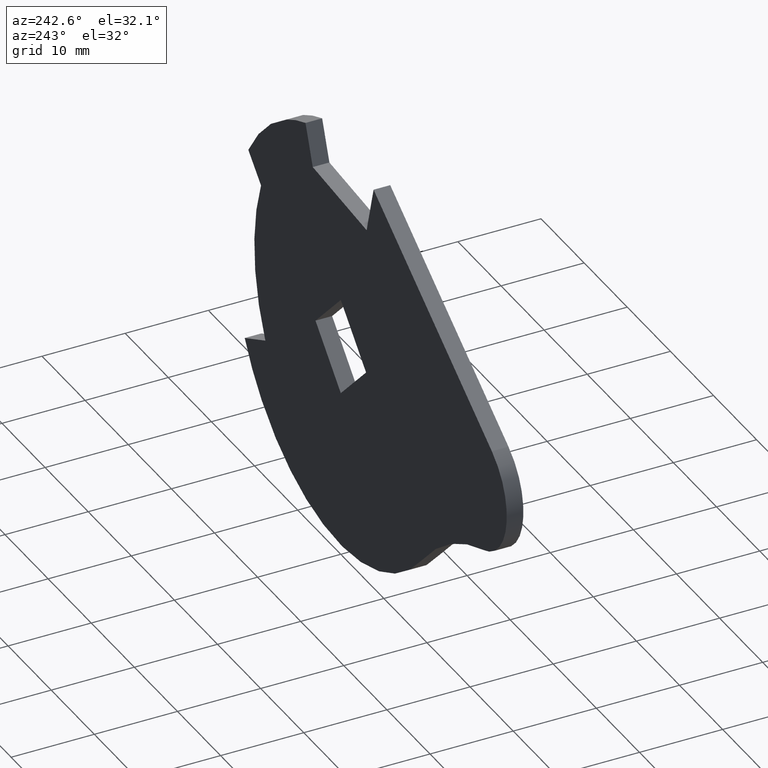
[diagram: clean part render]
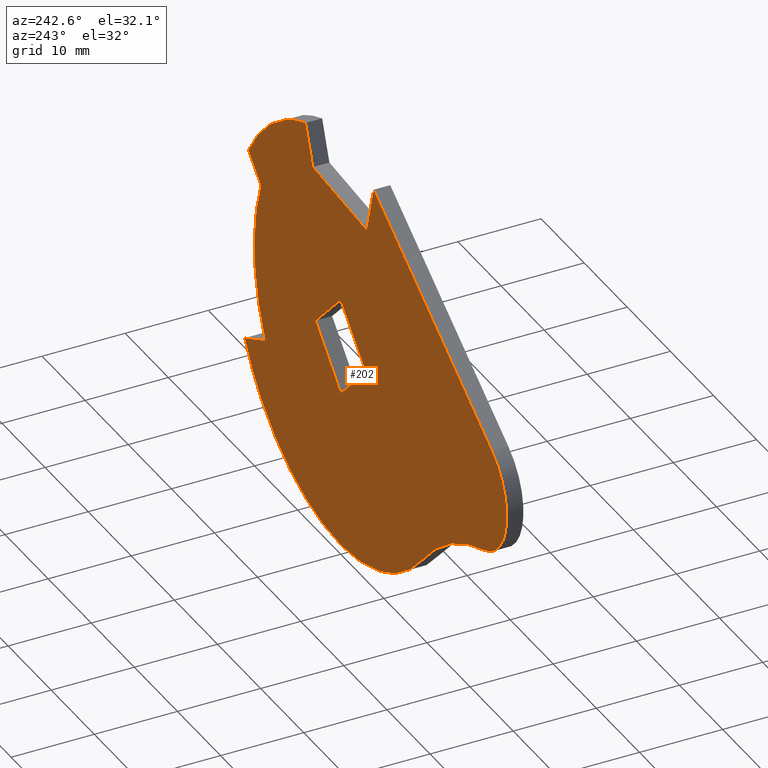
[diagram: same view with one face highlighted and labeled with its STEP entity id]
A machine part, auxiliary view. The second image highlights one B-rep face of the part: STEP entity #202.
In plain terms, the highlighted face is a freeform B-spline surface patch.
Its self-contained STEP definition (entity closure, byte-faithful):
#44=CARTESIAN_POINT('',(-41.535127349591320,0.0,26.447485419626780));
#45=CARTESIAN_POINT('',(25.319943420083320,0.0,26.447485419626780));
#46=CARTESIAN_POINT('',(-41.535127349591320,0.0,-27.446195734419138));
#47=CARTESIAN_POINT('',(25.319943420083320,0.0,-27.446195734419138));
#48=B_SPLINE_SURFACE_WITH_KNOTS('',1,1,((#44,#46),(#45,#47)),.UNSPECIFIED.,.F.,.F.,.U.,(2,2),(2,2),(0.0,66.855070769674640),(0.0,53.893681154045922),.UNSPECIFIED.);
#49=CARTESIAN_POINT('',(-18.912305335812551,0.0,-16.349430156952501));
#50=VERTEX_POINT('',#49);
#51=CARTESIAN_POINT('',(-33.121543283682698,0.0,-7.193419501498741));
#52=VERTEX_POINT('',#51);
#53=CARTESIAN_POINT('',(-18.912305335812551,0.0,-16.349430156952501));
#54=CARTESIAN_POINT('',(-24.672926693730464,0.0,-9.685671257501392));
#55=CARTESIAN_POINT('',(-33.121543283682698,0.0,-7.193419501498741));
#63=(BOUNDED_CURVE()B_SPLINE_CURVE(2,(#53,#54,#55),.UNSPECIFIED.,.F.,.U.)CURVE()GEOMETRIC_REPRESENTATION_ITEM()QUASI_UNIFORM_CURVE()RATIONAL_B_SPLINE_CURVE((1.0,0.959505779183390,1.0))REPRESENTATION_ITEM(''));
#64=EDGE_CURVE('',#50,#52,#63,.T.);
#65=ORIENTED_EDGE('',*,*,#64,.T.);
#66=CARTESIAN_POINT('',(-35.029268839974250,0.0,6.325740479597029));
#67=VERTEX_POINT('',#66);
#68=CARTESIAN_POINT('',(-35.029268839974250,0.0,6.325740479597032));
#69=CARTESIAN_POINT('',(-39.100513541276328,0.0,3.732095857407590));
#70=CARTESIAN_POINT('',(-38.426014233238163,0.0,-1.047765702046671));
#71=CARTESIAN_POINT('',(-37.751514925199984,0.0,-5.827627261500933));
#72=CARTESIAN_POINT('',(-33.121543283682698,0.0,-7.193419501498741));
#80=(BOUNDED_CURVE()B_SPLINE_CURVE(2,(#68,#69,#70,#71,#72),.UNSPECIFIED.,.F.,.U.)B_SPLINE_CURVE_WITH_KNOTS((3,2,3),(0.0,0.500000000000000,1.0),.UNSPECIFIED.)CURVE()GEOMETRIC_REPRESENTATION_ITEM()RATIONAL_B_SPLINE_CURVE((1.0,0.840886149082069,1.0,0.840886149082069,1.0))REPRESENTATION_ITEM(''));
#81=EDGE_CURVE('',#67,#52,#80,.T.);
#82=ORIENTED_EDGE('',*,*,#81,.F.);
#83=CARTESIAN_POINT('',(-7.607000000000000,0.0,24.0));
#84=VERTEX_POINT('',#83);
#85=CARTESIAN_POINT('',(-35.029268839974250,0.0,6.325740479597029));
#86=CARTESIAN_POINT('',(-7.607000000000000,0.0,24.0));
#87=QUASI_UNIFORM_CURVE('',1,(#85,#86),.UNSPECIFIED.,.F.,.U.);
#88=EDGE_CURVE('',#67,#84,#87,.T.);
#89=ORIENTED_EDGE('',*,*,#88,.T.);
#90=CARTESIAN_POINT('',(-6.0,0.0,18.0));
#91=VERTEX_POINT('',#90);
#92=CARTESIAN_POINT('',(-7.607000000000000,0.0,24.0));
#93=CARTESIAN_POINT('',(-6.0,0.0,18.0));
#94=QUASI_UNIFORM_CURVE('',1,(#92,#93),.UNSPECIFIED.,.F.,.U.);
#95=EDGE_CURVE('',#84,#91,#94,.T.);
#96=ORIENTED_EDGE('',*,*,#95,.T.);
#97=CARTESIAN_POINT('',(6.500000000000000,0.0,19.0));
#98=VERTEX_POINT('',#97);
#99=CARTESIAN_POINT('',(-6.0,0.0,18.0));
#100=CARTESIAN_POINT('',(6.500000000000000,0.0,19.0));
#101=QUASI_UNIFORM_CURVE('',1,(#99,#100),.UNSPECIFIED.,.F.,.U.);
#102=EDGE_CURVE('',#91,#98,#101,.T.);
#103=ORIENTED_EDGE('',*,*,#102,.T.);
#104=CARTESIAN_POINT('',(8.182980201324261,0.0,23.622845616579198));
#105=VERTEX_POINT('',#104);
#106=CARTESIAN_POINT('',(6.500000000000000,0.0,19.0));
#107=CARTESIAN_POINT('',(8.182980201324261,0.0,23.622845616579198));
#108=QUASI_UNIFORM_CURVE('',1,(#106,#107),.UNSPECIFIED.,.F.,.U.);
#109=EDGE_CURVE('',#98,#105,#108,.T.);
#110=ORIENTED_EDGE('',*,*,#109,.T.);
#111=CARTESIAN_POINT('',(21.447462022705601,0.0,12.845480636574161));
#112=VERTEX_POINT('',#111);
#113=CARTESIAN_POINT('',(21.447462022705590,0.0,12.845480636574150));
#114=CARTESIAN_POINT('',(16.775225539792963,0.0,20.646482199960836));
#115=CARTESIAN_POINT('',(8.182980201324261,0.0,23.622845616579209));
#123=(BOUNDED_CURVE()B_SPLINE_CURVE(2,(#113,#114,#115),.UNSPECIFIED.,.F.,.U.)CURVE()GEOMETRIC_REPRESENTATION_ITEM()QUASI_UNIFORM_CURVE()RATIONAL_B_SPLINE_CURVE((1.0,0.939766338213495,1.0))REPRESENTATION_ITEM(''));
#124=EDGE_CURVE('',#112,#105,#123,.T.);
#125=ORIENTED_EDGE('',*,*,#124,.F.);
#126=CARTESIAN_POINT('',(18.500357144043949,0.0,10.000344786956999));
#127=VERTEX_POINT('',#126);
#128=CARTESIAN_POINT('',(21.447462022705601,0.0,12.845480636574161));
#129=CARTESIAN_POINT('',(18.500357144043949,0.0,10.000344786956999));
#130=QUASI_UNIFORM_CURVE('',1,(#128,#129),.UNSPECIFIED.,.F.,.U.);
#131=EDGE_CURVE('',#112,#127,#130,.T.);
#132=ORIENTED_EDGE('',*,*,#131,.T.);
#133=CARTESIAN_POINT('',(17.500414805350200,0.0,-9.000202269632389));
#134=VERTEX_POINT('',#133);
#135=CARTESIAN_POINT('',(17.500414805350200,0.0,-9.000202269632394));
#136=CARTESIAN_POINT('',(22.241226133301584,0.0,0.276888441157541));
#137=CARTESIAN_POINT('',(18.500357144043939,0.0,10.000344786956990));
#145=(BOUNDED_CURVE()B_SPLINE_CURVE(2,(#135,#136,#137),.UNSPECIFIED.,.F.,.U.)CURVE()GEOMETRIC_REPRESENTATION_ITEM()QUASI_UNIFORM_CURVE()RATIONAL_B_SPLINE_CURVE((1.0,0.913150525690982,1.0))REPRESENTATION_ITEM(''));
#146=EDGE_CURVE('',#134,#127,#145,.T.);
#147=ORIENTED_EDGE('',*,*,#146,.F.);
#148=CARTESIAN_POINT('',(22.283837975185001,0.0,-11.332720992581740));
#149=VERTEX_POINT('',#148);
#150=CARTESIAN_POINT('',(17.500414805350200,0.0,-9.000202269632389));
#151=CARTESIAN_POINT('',(22.283837975185001,0.0,-11.332720992581740));
#152=QUASI_UNIFORM_CURVE('',1,(#150,#151),.UNSPECIFIED.,.F.,.U.);
#153=EDGE_CURVE('',#134,#149,#152,.T.);
#154=ORIENTED_EDGE('',*,*,#153,.T.);
#155=CARTESIAN_POINT('',(-18.912305335812562,0.0,-16.349430156952501));
#156=CARTESIAN_POINT('',(-10.200774324168949,0.0,-26.426735799385476));
#157=CARTESIAN_POINT('',(3.022309094434244,0.0,-24.816479148257720));
#158=CARTESIAN_POINT('',(16.245392513037434,0.0,-23.206222497129971));
#159=CARTESIAN_POINT('',(22.283837975185001,0.0,-11.332720992581750));
#167=(BOUNDED_CURVE()B_SPLINE_CURVE(2,(#155,#156,#157,#158,#159),.UNSPECIFIED.,.F.,.U.)B_SPLINE_CURVE_WITH_KNOTS((3,2,3),(0.0,0.500000000000000,1.0),.UNSPECIFIED.)CURVE()GEOMETRIC_REPRESENTATION_ITEM()RATIONAL_B_SPLINE_CURVE((1.0,0.882534954793417,1.0,0.882534954793417,1.0))REPRESENTATION_ITEM(''));
#168=EDGE_CURVE('',#50,#149,#167,.T.);
#169=ORIENTED_EDGE('',*,*,#168,.F.);
#170=EDGE_LOOP('',(#65,#82,#89,#96,#103,#110,#125,#132,#147,#154,#169));
#171=FACE_OUTER_BOUND('',#170,.T.);
#172=CARTESIAN_POINT('',(0.0,0.0,-5.868999999999900));
#173=VERTEX_POINT('',#172);
#174=CARTESIAN_POINT('',(-5.869000000000000,0.0,0.0));
#175=VERTEX_POINT('',#174);
#176=CARTESIAN_POINT('',(0.0,0.0,-5.868999999999900));
#177=CARTESIAN_POINT('',(-5.869000000000000,0.0,0.0));
#178=QUASI_UNIFORM_CURVE('',1,(#176,#177),.UNSPECIFIED.,.F.,.U.);
#179=EDGE_CURVE('',#173,#175,#178,.T.);
#180=ORIENTED_EDGE('',*,*,#179,.F.);
#181=CARTESIAN_POINT('',(5.869000000000000,0.0,0.0));
#182=VERTEX_POINT('',#181);
#183=CARTESIAN_POINT('',(5.869000000000000,0.0,0.0));
#184=CARTESIAN_POINT('',(0.0,0.0,-5.868999999999900));
#185=QUASI_UNIFORM_CURVE('',1,(#183,#184),.UNSPECIFIED.,.F.,.U.);
#186=EDGE_CURVE('',#182,#173,#185,.T.);
#187=ORIENTED_EDGE('',*,*,#186,.F.);
#188=CARTESIAN_POINT('',(0.0,0.0,5.869000000000100));
#189=VERTEX_POINT('',#188);
#190=CARTESIAN_POINT('',(0.0,0.0,5.869000000000100));
#191=CARTESIAN_POINT('',(5.869000000000000,0.0,0.0));
#192=QUASI_UNIFORM_CURVE('',1,(#190,#191),.UNSPECIFIED.,.F.,.U.);
#193=EDGE_CURVE('',#189,#182,#192,.T.);
#194=ORIENTED_EDGE('',*,*,#193,.F.);
#195=CARTESIAN_POINT('',(-5.869000000000000,0.0,0.0));
#196=CARTESIAN_POINT('',(0.0,0.0,5.869000000000100));
#197=QUASI_UNIFORM_CURVE('',1,(#195,#196),.UNSPECIFIED.,.F.,.U.);
#198=EDGE_CURVE('',#175,#189,#197,.T.);
#199=ORIENTED_EDGE('',*,*,#198,.F.);
#200=EDGE_LOOP('',(#180,#187,#194,#199));
#201=FACE_BOUND('',#200,.T.);
#202=ADVANCED_FACE('',(#171,#201),#48,.T.);